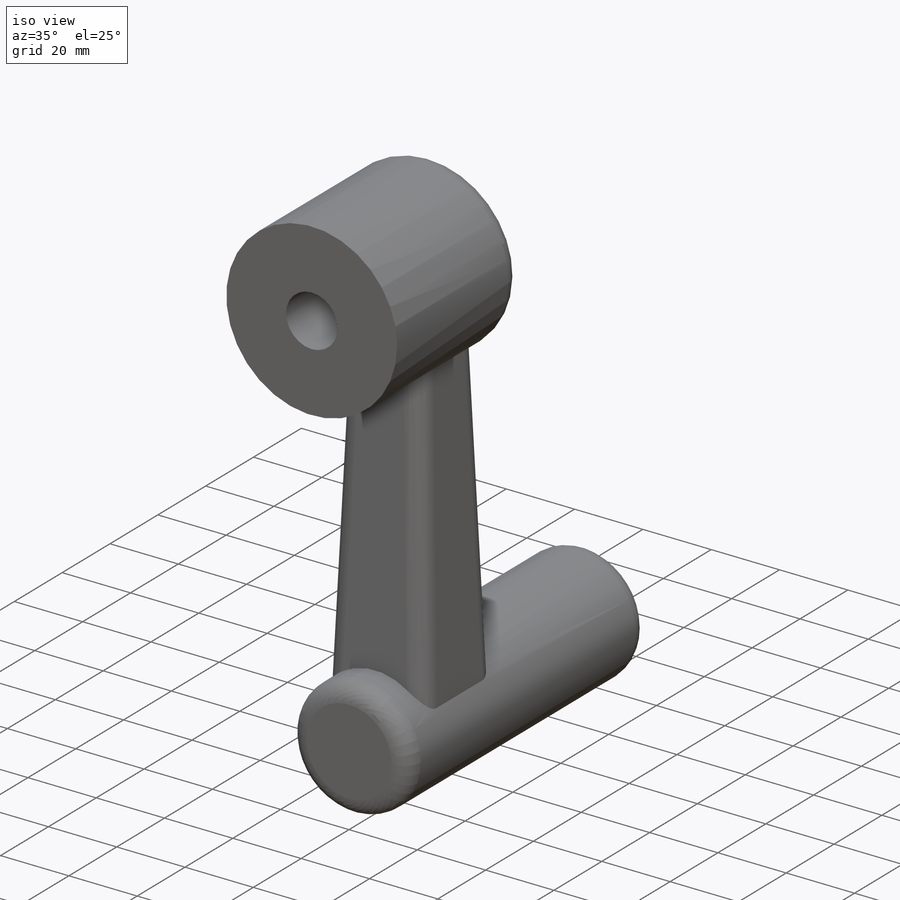
[diagram: iso view]
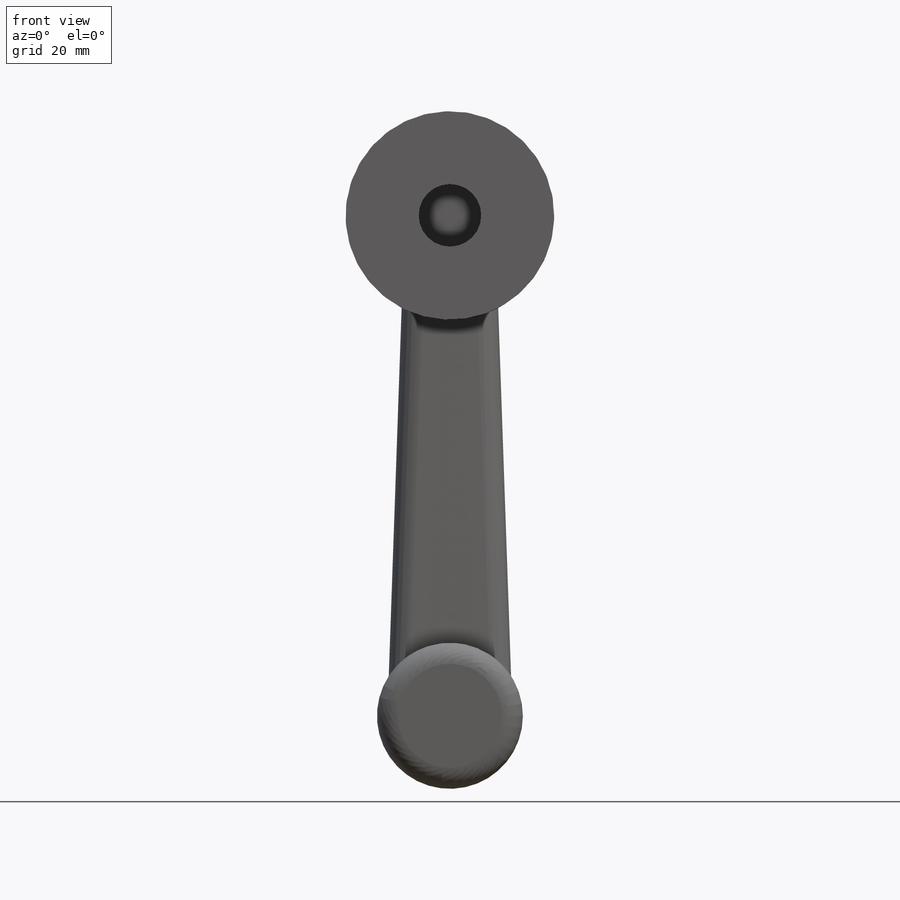
[diagram: front view]
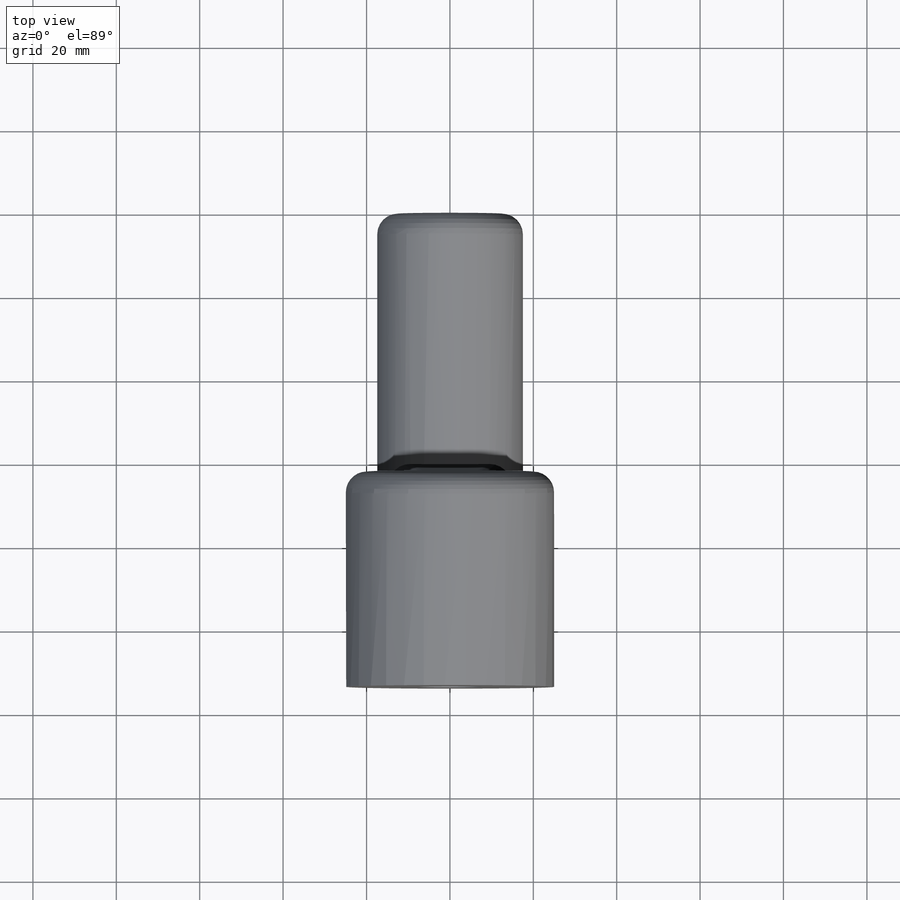
[diagram: top view]
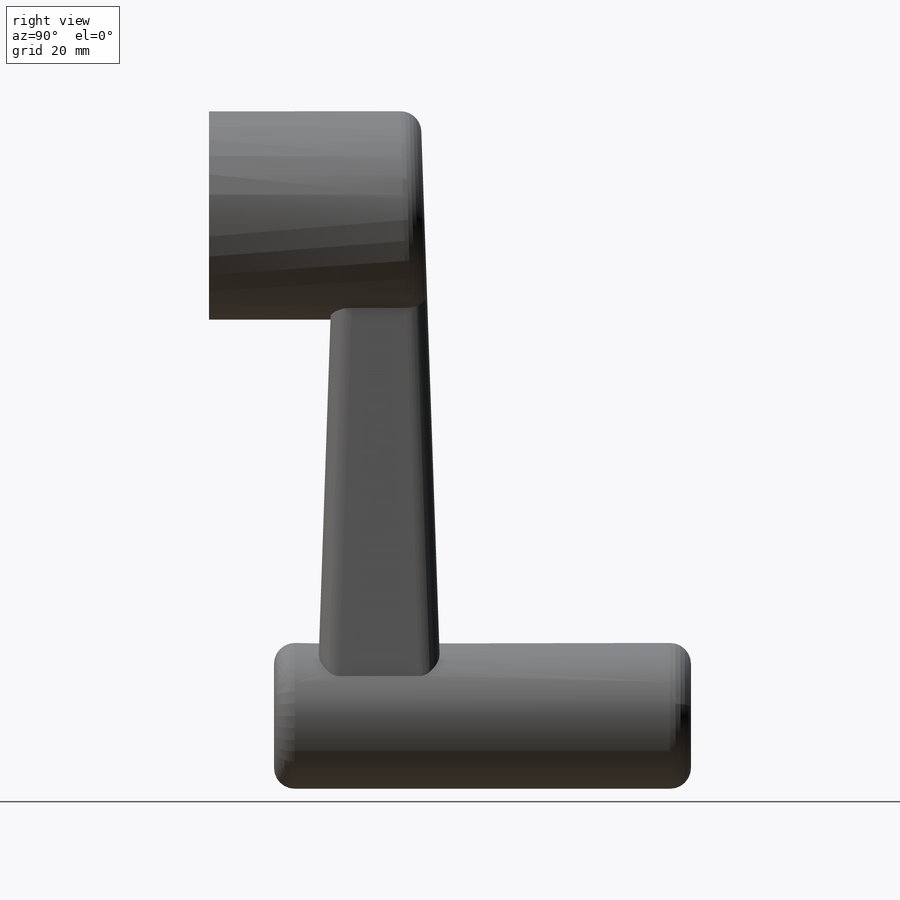
[diagram: right view]
SOLIDWORKS PART (.sldprt)
format: sldprt  version: not decoded by parser v0  size: 251,904 bytes
history: native  units: mm
features: sketch x6, extrude x3, material x1, plane x1, cut_extrude x1, fillet x1 (+13 scaffold rows collapsed)
feature tree (26):
  scaffold x13  (default folders/planes/origin — collapsed)
  material  "Material <not specified>"
  sketch  "Sketch5"  dims[D1=35.0mm]
  extrude  "Boss-Extrude1"  Depth=100mm
  sketch  "Sketch7"
  sketch  "Sketch8"  dims[D1=25.0mm D2=35.0mm]
  sketch  "Sketch9"  dims[c1.D1=15.0mm c1.D2=30.0mm c1.D3=100.0mm c2.D3=90.0deg c3.D3=30.0mm c4.D3=90.0deg c5.D3=15.0mm c5.D4=30.0mm]
  extrude  "Boss-Extrude2"  Depth=120mm
  plane  "Plane2"
  sketch  "Sketch13"  dims[D1=50.0mm]
  extrude  "Boss-Extrude4"  Depth=30mm
  sketch  "Sketch14"  dims[D1=15.0mm]
  cut_extrude  "Cut-Extrude1"  Depth=25mm
  fillet  "Fillet1"  Radius=5mm
decode coverage: 10 of 11 modeling features carry decoded parameters
note: suppression state not decoded; provenance and decode notes live in map.json
